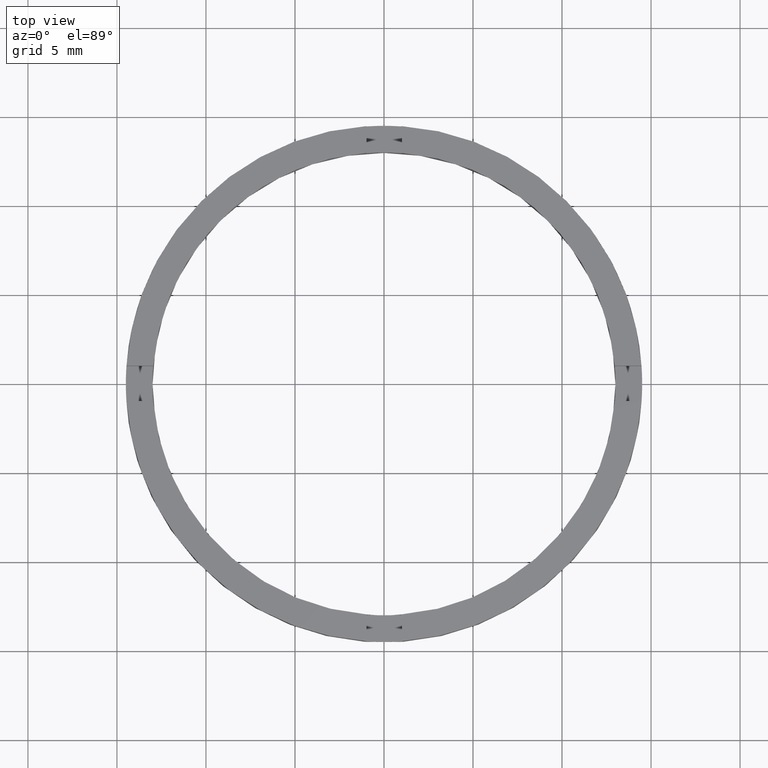
[diagram: clean part render]
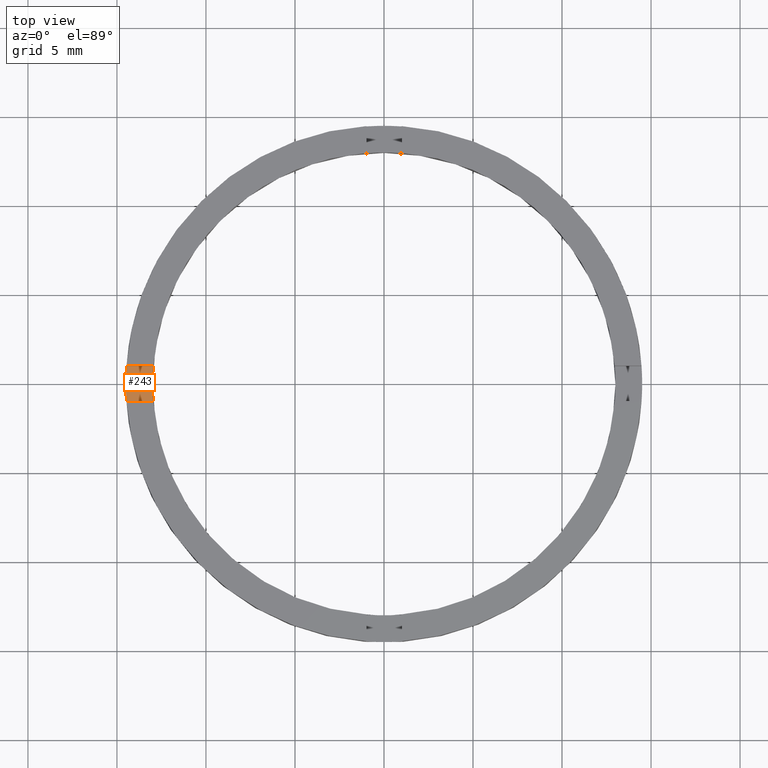
[diagram: same view with one face highlighted and labeled with its STEP entity id]
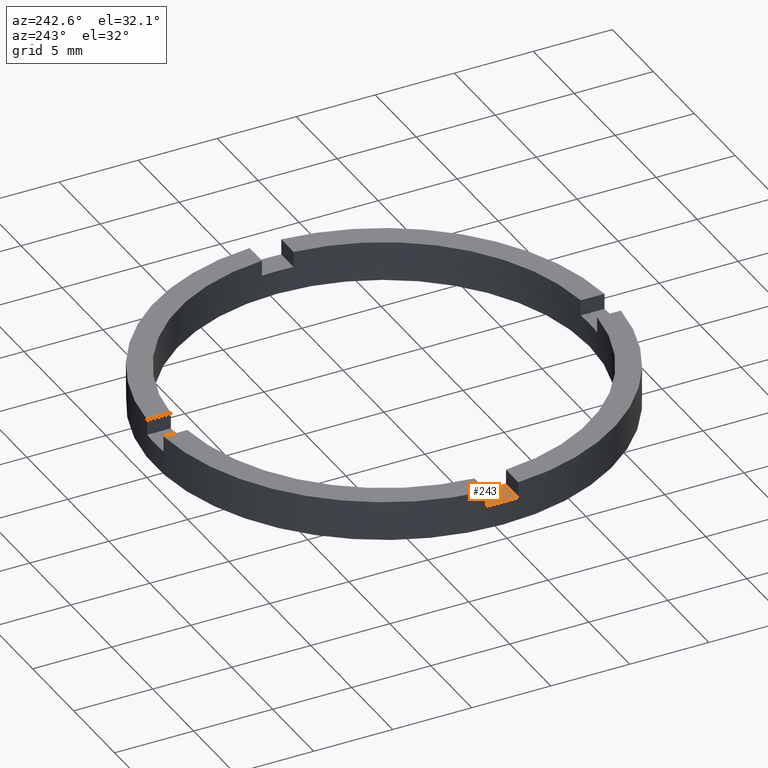
[diagram: same view with one face highlighted and labeled with its STEP entity id]
A machine part, top view. The second image highlights one B-rep face of the part: STEP entity #243.
A second angle (auxiliary view) of the same face is appended — the face is thin or edge-on in the first view.
In plain terms, the highlighted planar face has unit normal (0, 0, 1).
Its self-contained STEP definition (entity closure, byte-faithful):
#2 = DIRECTION ( 'NONE',  ( 1.000000000000000000, 0.000000000000000000, 0.000000000000000000 ) ) ;
#15 = VERTEX_POINT ( 'NONE', #617 ) ;
#16 = CARTESIAN_POINT ( 'NONE',  ( -12.96148139681571898, -1.000000000000022427, 1.500000000000000000 ) ) ;
#17 = VERTEX_POINT ( 'NONE', #523 ) ;
#29 = LINE ( 'NONE', #588, #551 ) ;
#37 = AXIS2_PLACEMENT_3D ( 'NONE', #550, #91, #2 ) ;
#40 = CARTESIAN_POINT ( 'NONE',  ( 0.000000000000000000, 0.000000000000000000, 1.500000000000000000 ) ) ;
#49 = CIRCLE ( 'NONE', #412, 13.00000000000000178 ) ;
#50 = DIRECTION ( 'NONE',  ( 1.000000000000000000, 0.000000000000000000, -0.000000000000000000 ) ) ;
#58 = AXIS2_PLACEMENT_3D ( 'NONE', #40, #315, #323 ) ;
#90 = CARTESIAN_POINT ( 'NONE',  ( 0.000000000000000000, 0.000000000000000000, 1.500000000000000000 ) ) ;
#91 = DIRECTION ( 'NONE',  ( 0.000000000000000000, 0.000000000000000000, 1.000000000000000000 ) ) ;
#104 = EDGE_CURVE ( 'NONE', #17, #442, #180, .T. ) ;
#145 = VERTEX_POINT ( 'NONE', #612 ) ;
#146 = VERTEX_POINT ( 'NONE', #453 ) ;
#151 = DIRECTION ( 'NONE',  ( 1.000000000000000000, 1.734723475976807094E-16, -0.000000000000000000 ) ) ;
#157 = ORIENTED_EDGE ( 'NONE', *, *, #104, .T. ) ;
#172 = EDGE_LOOP ( 'NONE', ( #708, #430, #681, #485, #226, #157 ) ) ;
#180 = LINE ( 'NONE', #213, #446 ) ;
#190 = CARTESIAN_POINT ( 'NONE',  ( 0.000000000000000000, 0.000000000000000000, 1.500000000000000000 ) ) ;
#213 = CARTESIAN_POINT ( 'NONE',  ( -4.500000000000186517, 0.9999999999999790168, 1.500000000000000000 ) ) ;
#215 = FACE_OUTER_BOUND ( 'NONE', #172, .T. ) ;
#221 = CIRCLE ( 'NONE', #753, 13.00000000000000178 ) ;
#226 = ORIENTED_EDGE ( 'NONE', *, *, #770, .F. ) ;
#229 = CIRCLE ( 'NONE', #58, 14.50000000000000000 ) ;
#243 = ADVANCED_FACE ( 'NONE', ( #215 ), #280, .T. ) ;
#278 = EDGE_CURVE ( 'NONE', #146, #653, #221, .T. ) ;
#280 = PLANE ( 'NONE',  #571 ) ;
#298 = CIRCLE ( 'NONE', #37, 14.50000000000000000 ) ;
#315 = DIRECTION ( 'NONE',  ( 0.000000000000000000, 0.000000000000000000, 1.000000000000000000 ) ) ;
#323 = DIRECTION ( 'NONE',  ( 1.000000000000000000, 0.000000000000000000, 0.000000000000000000 ) ) ;
#402 = DIRECTION ( 'NONE',  ( 1.000000000000000000, 0.000000000000000000, 0.000000000000000000 ) ) ;
#412 = AXIS2_PLACEMENT_3D ( 'NONE', #190, #492, #554 ) ;
#422 = EDGE_CURVE ( 'NONE', #442, #15, #229, .T. ) ;
#430 = ORIENTED_EDGE ( 'NONE', *, *, #627, .T. ) ;
#442 = VERTEX_POINT ( 'NONE', #765 ) ;
#446 = VECTOR ( 'NONE', #522, 1000.000000000000000 ) ;
#453 = CARTESIAN_POINT ( 'NONE',  ( -13.00000000000000178, 0.000000000000000000, 1.500000000000000000 ) ) ;
#485 = ORIENTED_EDGE ( 'NONE', *, *, #278, .F. ) ;
#492 = DIRECTION ( 'NONE',  ( 0.000000000000000000, 0.000000000000000000, 1.000000000000000000 ) ) ;
#522 = DIRECTION ( 'NONE',  ( -1.000000000000000000, -1.734723475976807094E-16, 0.000000000000000000 ) ) ;
#523 = CARTESIAN_POINT ( 'NONE',  ( -12.96148139681572253, 0.9999999999999776845, 1.500000000000000000 ) ) ;
#550 = CARTESIAN_POINT ( 'NONE',  ( 0.000000000000000000, 0.000000000000000000, 1.500000000000000000 ) ) ;
#551 = VECTOR ( 'NONE', #151, 1000.000000000000000 ) ;
#554 = DIRECTION ( 'NONE',  ( 1.000000000000000000, 0.000000000000000000, 0.000000000000000000 ) ) ;
#571 = AXIS2_PLACEMENT_3D ( 'NONE', #589, #728, #50 ) ;
#588 = CARTESIAN_POINT ( 'NONE',  ( -4.500000000000186517, -1.000000000000021094, 1.500000000000000000 ) ) ;
#589 = CARTESIAN_POINT ( 'NONE',  ( 0.000000000000000000, 0.000000000000000000, 1.500000000000000000 ) ) ;
#590 = EDGE_CURVE ( 'NONE', #145, #653, #29, .T. ) ;
#612 = CARTESIAN_POINT ( 'NONE',  ( -14.46547614148943062, -1.000000000000022871, 1.500000000000000000 ) ) ;
#617 = CARTESIAN_POINT ( 'NONE',  ( -14.50000000000000000, 0.000000000000000000, 1.500000000000000000 ) ) ;
#627 = EDGE_CURVE ( 'NONE', #15, #145, #298, .T. ) ;
#631 = DIRECTION ( 'NONE',  ( 0.000000000000000000, 0.000000000000000000, 1.000000000000000000 ) ) ;
#653 = VERTEX_POINT ( 'NONE', #16 ) ;
#681 = ORIENTED_EDGE ( 'NONE', *, *, #590, .T. ) ;
#708 = ORIENTED_EDGE ( 'NONE', *, *, #422, .T. ) ;
#728 = DIRECTION ( 'NONE',  ( 0.000000000000000000, 0.000000000000000000, 1.000000000000000000 ) ) ;
#753 = AXIS2_PLACEMENT_3D ( 'NONE', #90, #631, #402 ) ;
#765 = CARTESIAN_POINT ( 'NONE',  ( -14.46547614148943417, 0.9999999999999772404, 1.500000000000000000 ) ) ;
#770 = EDGE_CURVE ( 'NONE', #17, #146, #49, .T. ) ;